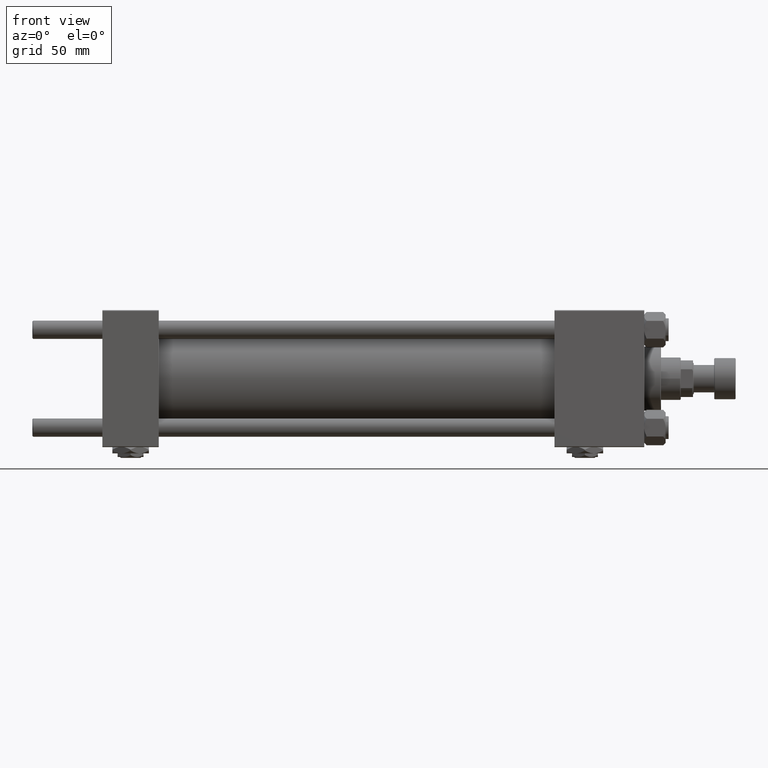
[diagram: clean part render]
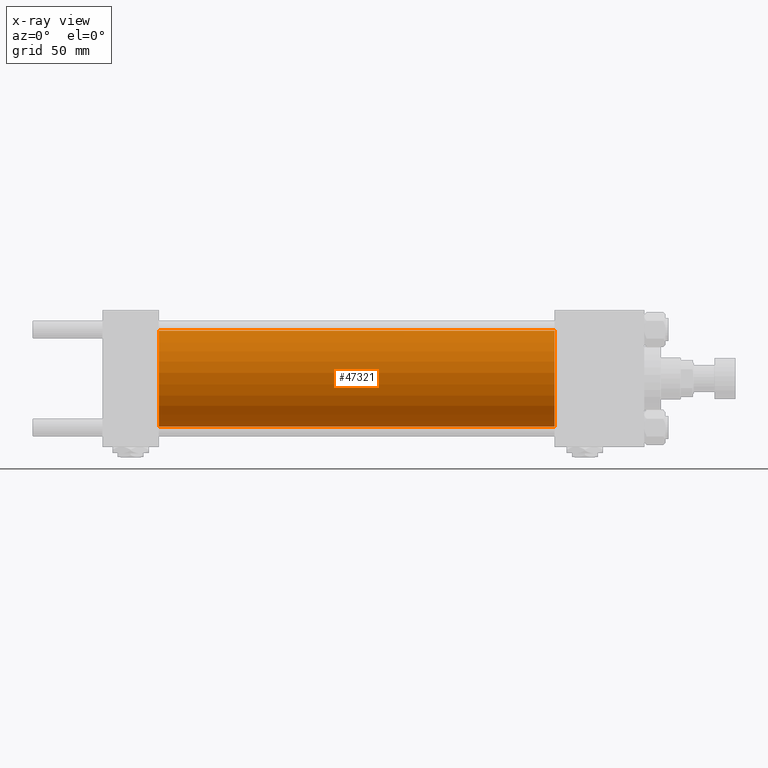
[diagram: x-ray — body ghosted, one internal face saturated and labeled with its STEP entity id]
A machine part, front view, then the same camera in x-ray: the body is ghosted and one INTERNAL B-rep face — a face not visible from any outside direction — is saturated and labeled: STEP entity #47321.
In plain terms, the highlighted cylindrical surface (partial cylindrical patch) has radius 31.5 mm, axis along (-1, -0, -0).
Its self-contained STEP definition (entity closure, byte-faithful):
#1500 = CARTESIAN_POINT ( 'NONE',  ( 297.0000000000000000, 0.000000000000000000, 0.000000000000000000 ) ) ;
#1688 = AXIS2_PLACEMENT_3D ( 'NONE', #1500, #41195, #5987 ) ;
#2399 = CARTESIAN_POINT ( 'NONE',  ( 297.0000000000000000, 0.000000000000000000, 0.000000000000000000 ) ) ;
#4490 = CARTESIAN_POINT ( 'NONE',  ( 297.0000000000000000, 3.857637417314162689E-15, -31.50000000000000000 ) ) ;
#4668 = DIRECTION ( 'NONE',  ( 0.000000000000000000, 0.000000000000000000, -1.000000000000000000 ) ) ;
#5987 = DIRECTION ( 'NONE',  ( 0.000000000000000000, 0.000000000000000000, -1.000000000000000000 ) ) ;
#6976 = EDGE_CURVE ( 'NONE', #10556, #18690, #35563, .T. ) ;
#9303 = VERTEX_POINT ( 'NONE', #37599 ) ;
#9837 = EDGE_LOOP ( 'NONE', ( #15888, #15979, #22609, #32050 ) ) ;
#10329 = DIRECTION ( 'NONE',  ( -1.000000000000000000, -0.000000000000000000, -0.000000000000000000 ) ) ;
#10556 = VERTEX_POINT ( 'NONE', #4490 ) ;
#10903 = AXIS2_PLACEMENT_3D ( 'NONE', #2399, #10329, #42346 ) ;
#15449 = CARTESIAN_POINT ( 'NONE',  ( 297.0000000000000000, 3.857637417314162689E-15, -31.50000000000000000 ) ) ;
#15888 = ORIENTED_EDGE ( 'NONE', *, *, #34149, .T. ) ;
#15979 = ORIENTED_EDGE ( 'NONE', *, *, #6976, .T. ) ;
#17425 = CARTESIAN_POINT ( 'NONE',  ( 37.00000000000000000, 3.857637417314162689E-15, -31.50000000000000000 ) ) ;
#18574 = CARTESIAN_POINT ( 'NONE',  ( 37.00000000000000000, 0.000000000000000000, 0.000000000000000000 ) ) ;
#18690 = VERTEX_POINT ( 'NONE', #17425 ) ;
#20778 = DIRECTION ( 'NONE',  ( 1.000000000000000000, 0.000000000000000000, 0.000000000000000000 ) ) ;
#22483 = CYLINDRICAL_SURFACE ( 'NONE', #10903, 31.50000000000000000 ) ;
#22496 = CARTESIAN_POINT ( 'NONE',  ( 297.0000000000000000, 0.000000000000000000, 31.50000000000000000 ) ) ;
#22609 = ORIENTED_EDGE ( 'NONE', *, *, #50143, .F. ) ;
#23125 = DIRECTION ( 'NONE',  ( -1.000000000000000000, -0.000000000000000000, -0.000000000000000000 ) ) ;
#23568 = CARTESIAN_POINT ( 'NONE',  ( 297.0000000000000000, 0.000000000000000000, 31.50000000000000000 ) ) ;
#27053 = AXIS2_PLACEMENT_3D ( 'NONE', #18574, #20778, #4668 ) ;
#27078 = VECTOR ( 'NONE', #51891, 1000.000000000000000 ) ;
#30170 = FACE_OUTER_BOUND ( 'NONE', #9837, .T. ) ;
#32050 = ORIENTED_EDGE ( 'NONE', *, *, #36698, .F. ) ;
#32121 = CIRCLE ( 'NONE', #1688, 31.50000000000000000 ) ;
#32904 = VERTEX_POINT ( 'NONE', #22496 ) ;
#34149 = EDGE_CURVE ( 'NONE', #32904, #10556, #32121, .T. ) ;
#35563 = LINE ( 'NONE', #15449, #50153 ) ;
#35765 = LINE ( 'NONE', #23568, #27078 ) ;
#36698 = EDGE_CURVE ( 'NONE', #32904, #9303, #35765, .T. ) ;
#37599 = CARTESIAN_POINT ( 'NONE',  ( 37.00000000000000000, 0.000000000000000000, 31.50000000000000000 ) ) ;
#41195 = DIRECTION ( 'NONE',  ( 1.000000000000000000, 0.000000000000000000, 0.000000000000000000 ) ) ;
#42346 = DIRECTION ( 'NONE',  ( 0.000000000000000000, 0.000000000000000000, 1.000000000000000000 ) ) ;
#47321 = ADVANCED_FACE ( 'NONE', ( #30170 ), #22483, .F. ) ;
#49882 = CIRCLE ( 'NONE', #27053, 31.50000000000000000 ) ;
#50143 = EDGE_CURVE ( 'NONE', #9303, #18690, #49882, .T. ) ;
#50153 = VECTOR ( 'NONE', #23125, 1000.000000000000000 ) ;
#51891 = DIRECTION ( 'NONE',  ( -1.000000000000000000, -0.000000000000000000, -0.000000000000000000 ) ) ;